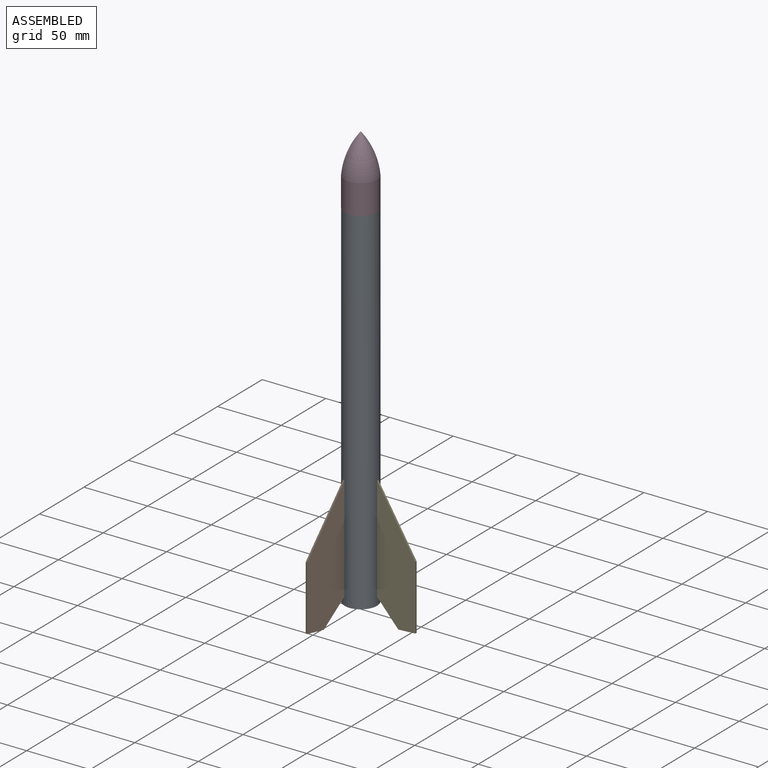
[diagram: assembled view]
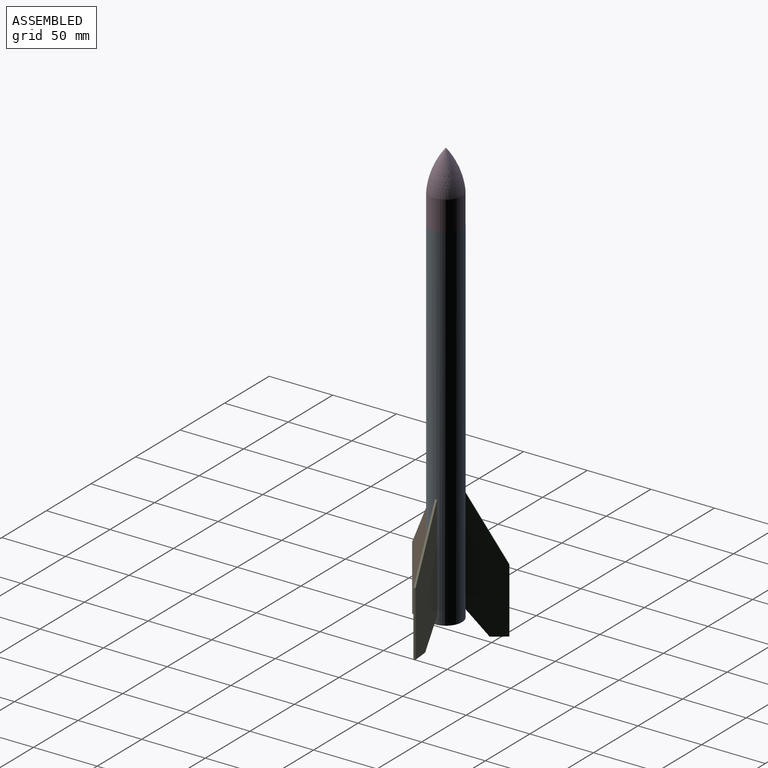
[diagram: assembled view, second angle]
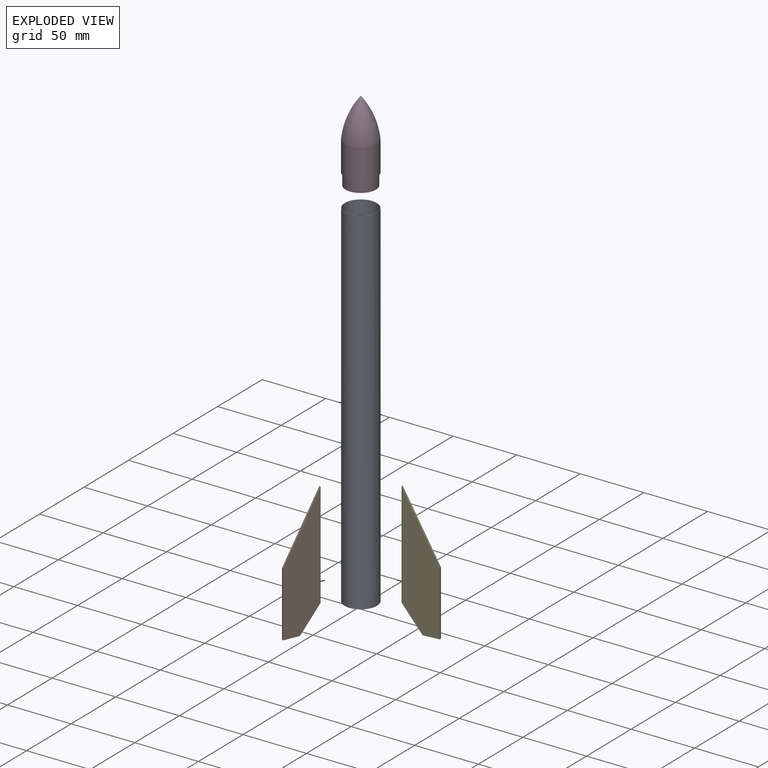
[diagram: exploded view]
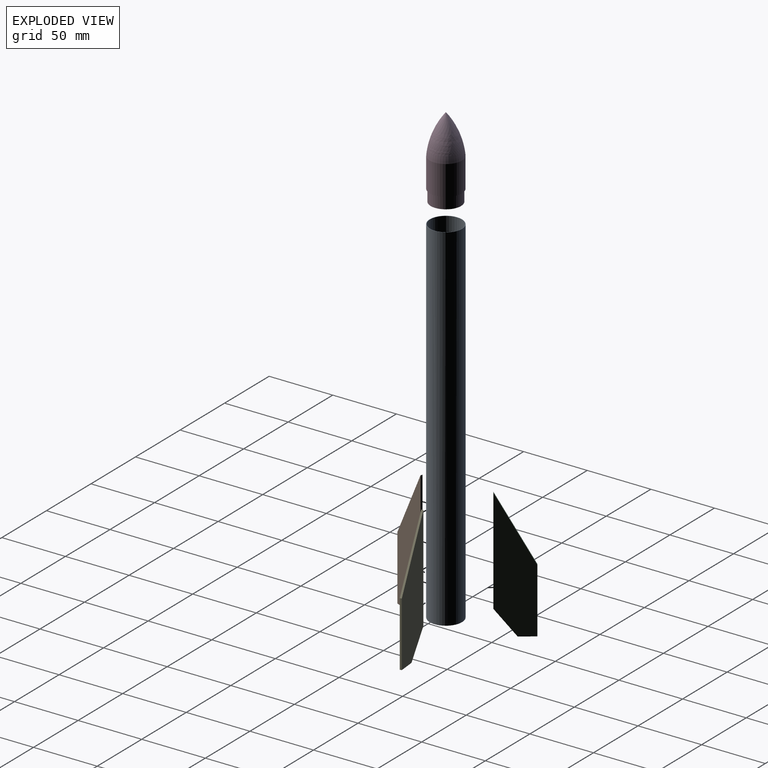
[diagram: exploded view, second angle]
ASSEMBLY  parts=5 mates=4
PART A: 19 faces, bbox 25.4x25.4x279.4 mm
  f0: plane 25.4x25.4mm, normal (0,0,-1), area 19.7mm2, adj f1,f2,f4,f5,f6,f7,f9,f10
  f1: cylinder r=12.45mm len=279.4mm, axis (0,0,-1), area 21849.2mm2, adj f0,f3
  f2: cylinder r=12.7mm len=279.4mm, axis (0,0,-1), area 22069.6mm2, adj f0,f3,f6,f7,f8,f11,f12,f13
  f3: plane 25.4x25.4mm, normal (0,0,1), area 20.1mm2, adj f1,f2
  f4: plane 95.25x0.39mm, normal (-0.4,-0.92,0), area 40mm2, adj f0,f5,f7,f8
  f5: plane 95.25x0.5mm, normal (-0.41,-0.91,0), area 52.2mm2, adj f0,f4,f6,f8
  f6: plane 95.25x0.14mm, normal (-0.91,0.41,0), area 14.3mm2, adj f0,f2,f5,f8
  f7: plane 95.25x0.13mm, normal (0.91,-0.41,0), area 14mm2, adj f0,f2,f4,f8
  f8: plane 0.95x0.53mm, normal (0,0,-1), area 0.2mm2, adj f2,f4,f5,f6,f7
  f9: plane 95.25x0.27mm, normal (-0.58,0.81,0), area 31.4mm2, adj f0,f10,f12,f13
  f10: plane 95.25x0.31mm, normal (-0.51,0.86,0), area 34.1mm2, adj f0,f9,f11,f13
  f11: plane 95.25x0.09mm, normal (0.81,0.58,0), area 10.4mm2, adj f0,f2,f10,f13
  f12: plane 95.25x0.11mm, normal (-0.81,-0.58,0), area 13.3mm2, adj f0,f2,f9,f13
  f13: plane 0.64x0.49mm, normal (0,0,-1), area 0.1mm2, adj f2,f9,f10,f11,f12
  f14: plane 95.25x0.09mm, normal (0.1,-1,0), area 9mm2, adj f0,f2,f17,f18
  f15: plane 95.25x0.1mm, normal (-0.1,1,0), area 9.8mm2, adj f0,f2,f16,f18
  f16: plane 95.25x0.36mm, normal (1,0.1,0), area 34.7mm2, adj f0,f15,f17,f18
  f17: plane 95.25x0.35mm, normal (1,0.07,0), area 33.2mm2, adj f0,f14,f16,f18
  f18: plane 0.72x0.16mm, normal (0,0,-1), area 0.1mm2, adj f2,f14,f15,f16,f17
PART B: 7 faces, bbox 28.3x1.5x102.3 mm
  f0: plane 19.73x15.63mm, normal (-0.78,0,-0.62), area 38.4mm2, adj f1,f4,f5,f6
  f1: plane 12.7x1.52mm, normal (0,0,-1), area 19.4mm2, adj f0,f2,f5,f6
  f2: plane 50.8x1.52mm, normal (1,0,0), area 77.4mm2, adj f1,f3,f5,f6
  f3: plane 51.48x28.33mm, normal (0.88,0,0.48), area 89.6mm2, adj f2,f4,f5,f6
  f4: plane 82.55x1.52mm, normal (-1,0,0), area 125.8mm2, adj f0,f3,f5,f6
  f5: plane 102.28x28.33mm, normal (0,-1,0), area 2014mm2, adj f0,f1,f2,f3,f4
  f6: plane 102.28x28.33mm, normal (0,1,0), area 2014mm2, adj f0,f1,f2,f3,f4
PART C: same geometry as B
PART D: 5 faces, bbox 25.4x25.4x63.5 mm
  f0: cylinder r=12.7mm len=25.4mm, axis (0,0,-1), area 1859.1mm2, adj f1,f4
  f1: revolved ~30.99x25.4mm, area 1684.4mm2, adj f0
  f2: plane 23.88x23.88mm, normal (0,0,-1), area 447.7mm2, adj f3
  f3: cylinder r=11.94mm len=23.88mm, axis (0,0,-1), area 691.2mm2, adj f2,f4
  f4: plane 25.4x25.4mm, normal (0,0,-1), area 59mm2, adj f0,f3
PART E: same geometry as B
PLACE A t=(-31.36,-22.94,63.3)mm fixed
PLACE B rot(axis=(0,0,-1),113.3deg) t=(-36.72,-34.28,-89.78)mm
PLACE C rot(axis=(0,0,1),125.6deg) t=(-38.54,-12.64,-89.78)mm
PLACE D t=(-31.36,-22.94,193.79)mm
PLACE E rot(axis=(0,0,1),5.6deg) t=(-18.81,-21.88,-89.78)mm
MATE fastened A.f9 <-> C.f4  axis (-0.58,0.81,0) through (-38.54,-12.64,-28.77)mm
MATE fastened D.f0 <-> A.f1  axis (0,0,-1) through (-31.36,-22.94,203)mm
MATE fastened A.f4 <-> B.f4  axis (-0.4,-0.92,0) through (-36.72,-34.28,-28.77)mm
MATE fastened A.f16 <-> E.f4  axis (1,0.1,0) through (-18.81,-21.88,-28.77)mm
